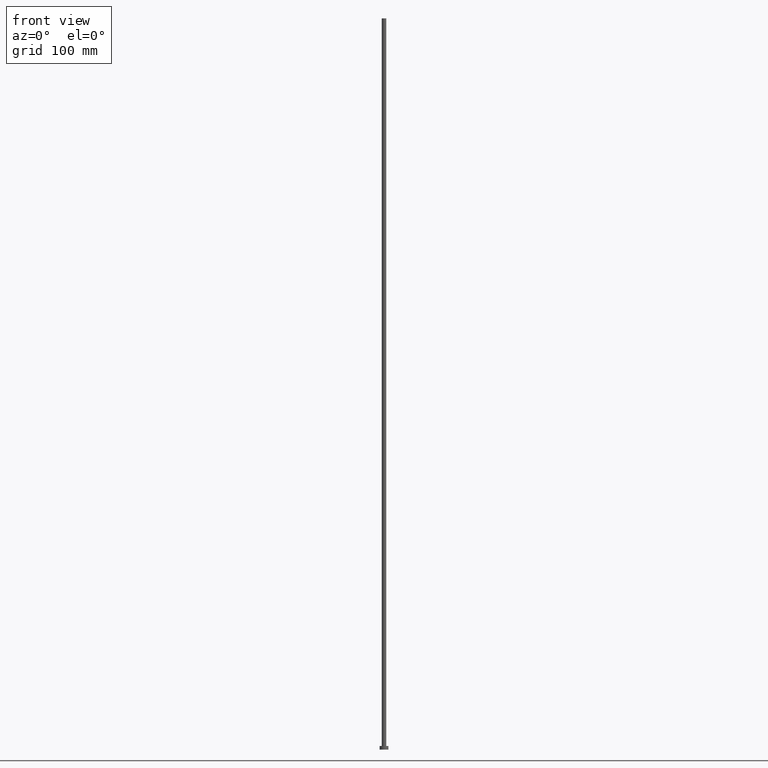
[diagram: clean part render]
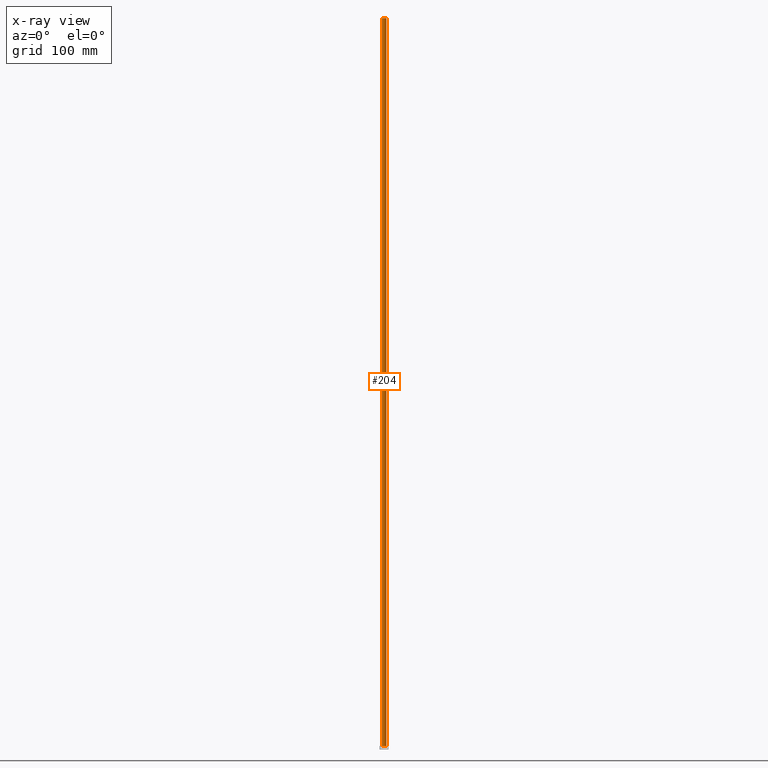
[diagram: x-ray — body ghosted, one internal face saturated and labeled with its STEP entity id]
A machine part, front view, then the same camera in x-ray: the body is ghosted and one INTERNAL B-rep face — a face not visible from any outside direction — is saturated and labeled: STEP entity #204.
In plain terms, the highlighted cylindrical surface (edge-blend (fillet) strip) has radius 3 mm, axis along (-0, -0, -1).
Its self-contained STEP definition (entity closure, byte-faithful):
#19 = VECTOR ( 'NONE', #20, 1000.000000000000000 ) ;
#20 = DIRECTION ( 'NONE',  ( -0.000000000000000000, -0.000000000000000000, -1.000000000000000000 ) ) ;
#31 = AXIS2_PLACEMENT_3D ( 'NONE', #95, #123, #249 ) ;
#35 = CARTESIAN_POINT ( 'NONE',  ( -3.000000000000000444, 0.000000000000000000, 1000.000000000000000 ) ) ;
#39 = ORIENTED_EDGE ( 'NONE', *, *, #118, .T. ) ;
#40 = FACE_OUTER_BOUND ( 'NONE', #146, .T. ) ;
#49 = DIRECTION ( 'NONE',  ( 0.000000000000000000, 0.000000000000000000, 1.000000000000000000 ) ) ;
#58 = VERTEX_POINT ( 'NONE', #203 ) ;
#60 = AXIS2_PLACEMENT_3D ( 'NONE', #68, #49, #131 ) ;
#62 = ORIENTED_EDGE ( 'NONE', *, *, #165, .F. ) ;
#65 = CARTESIAN_POINT ( 'NONE',  ( 0.000000000000000000, 0.000000000000000000, 5.000000000000000000 ) ) ;
#66 = CARTESIAN_POINT ( 'NONE',  ( -3.000000000000000444, 0.000000000000000000, 1000.000000000000000 ) ) ;
#68 = CARTESIAN_POINT ( 'NONE',  ( 0.000000000000000000, 0.000000000000000000, 1000.000000000000000 ) ) ;
#78 = EDGE_CURVE ( 'NONE', #58, #103, #185, .T. ) ;
#95 = CARTESIAN_POINT ( 'NONE',  ( 0.000000000000000000, 0.000000000000000000, 1000.000000000000000 ) ) ;
#100 = CARTESIAN_POINT ( 'NONE',  ( -3.000000000000000444, 0.000000000000000000, 5.000000000000000000 ) ) ;
#103 = VERTEX_POINT ( 'NONE', #66 ) ;
#111 = DIRECTION ( 'NONE',  ( 1.000000000000000000, 0.000000000000000000, 0.000000000000000000 ) ) ;
#118 = EDGE_CURVE ( 'NONE', #236, #239, #132, .T. ) ;
#123 = DIRECTION ( 'NONE',  ( -0.000000000000000000, -0.000000000000000000, -1.000000000000000000 ) ) ;
#131 = DIRECTION ( 'NONE',  ( 1.000000000000000000, 0.000000000000000000, 0.000000000000000000 ) ) ;
#132 = CIRCLE ( 'NONE', #245, 3.000000000000000444 ) ;
#133 = DIRECTION ( 'NONE',  ( 0.000000000000000000, 0.000000000000000000, 1.000000000000000000 ) ) ;
#136 = LINE ( 'NONE', #139, #19 ) ;
#139 = CARTESIAN_POINT ( 'NONE',  ( 3.000000000000000444, 3.673940397442059868E-16, 1000.000000000000000 ) ) ;
#146 = EDGE_LOOP ( 'NONE', ( #253, #201, #39, #62 ) ) ;
#148 = LINE ( 'NONE', #35, #242 ) ;
#150 = CARTESIAN_POINT ( 'NONE',  ( 3.000000000000000444, 3.673940397442059868E-16, 5.000000000000000000 ) ) ;
#165 = EDGE_CURVE ( 'NONE', #103, #239, #148, .T. ) ;
#185 = CIRCLE ( 'NONE', #60, 3.000000000000000444 ) ;
#189 = DIRECTION ( 'NONE',  ( -0.000000000000000000, -0.000000000000000000, -1.000000000000000000 ) ) ;
#195 = CYLINDRICAL_SURFACE ( 'NONE', #31, 3.000000000000000444 ) ;
#201 = ORIENTED_EDGE ( 'NONE', *, *, #224, .T. ) ;
#203 = CARTESIAN_POINT ( 'NONE',  ( 3.000000000000000444, 3.673940397442059868E-16, 1000.000000000000000 ) ) ;
#204 = ADVANCED_FACE ( 'NONE', ( #40 ), #195, .T. ) ;
#224 = EDGE_CURVE ( 'NONE', #58, #236, #136, .T. ) ;
#236 = VERTEX_POINT ( 'NONE', #150 ) ;
#239 = VERTEX_POINT ( 'NONE', #100 ) ;
#242 = VECTOR ( 'NONE', #189, 1000.000000000000000 ) ;
#245 = AXIS2_PLACEMENT_3D ( 'NONE', #65, #133, #111 ) ;
#249 = DIRECTION ( 'NONE',  ( -1.000000000000000000, 0.000000000000000000, 0.000000000000000000 ) ) ;
#253 = ORIENTED_EDGE ( 'NONE', *, *, #78, .F. ) ;